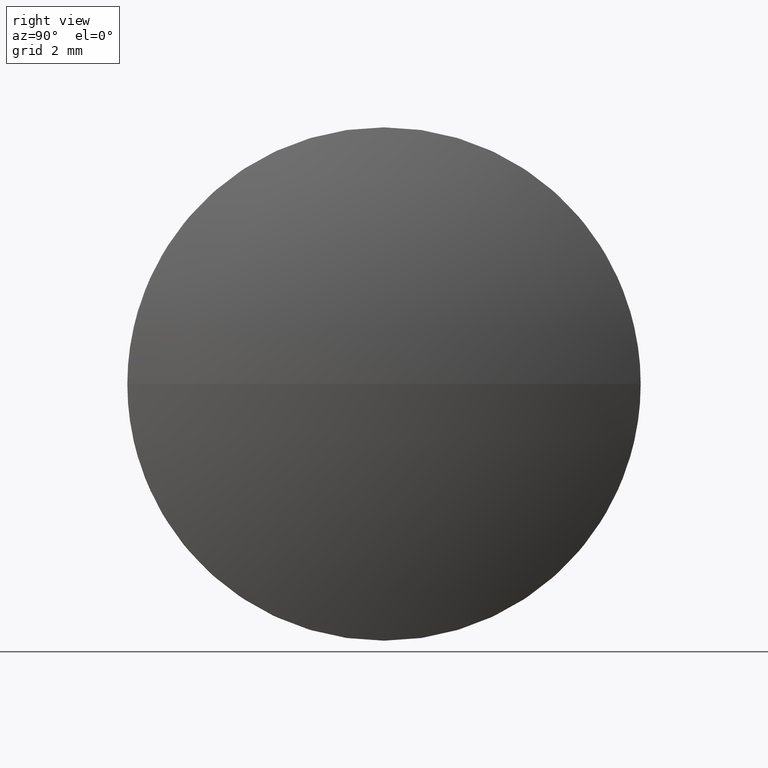
[diagram: clean part render]
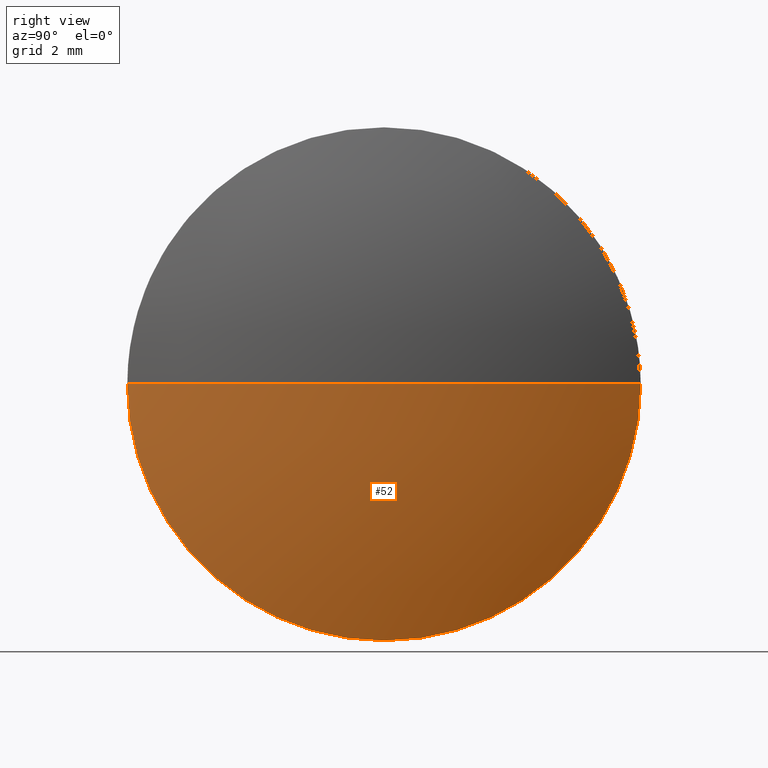
[diagram: same view with one face highlighted and labeled with its STEP entity id]
A machine part, right view. The second image highlights one B-rep face of the part: STEP entity #52.
In plain terms, the highlighted spherical surface has radius 20.7893 mm.
Its self-contained STEP definition (entity closure, byte-faithful):
#1 = AXIS2_PLACEMENT_3D ( 'NONE', #87, #11, #106 ) ;
#3 = EDGE_CURVE ( 'NONE', #139, #54, #163, .T. ) ;
#4 = ORIENTED_EDGE ( 'NONE', *, *, #83, .F. ) ;
#6 = AXIS2_PLACEMENT_3D ( 'NONE', #116, #22, #13 ) ;
#11 = DIRECTION ( 'NONE',  ( -1.000000000000000000, -0.0000000000000000000, -0.0000000000000000000 ) ) ;
#13 = DIRECTION ( 'NONE',  ( 0.0000000000000000000, 0.0000000000000000000, 1.000000000000000000 ) ) ;
#22 = DIRECTION ( 'NONE',  ( -1.000000000000000000, -0.0000000000000000000, -0.0000000000000000000 ) ) ;
#23 = CARTESIAN_POINT ( 'NONE',  ( 366.1699605554130700, 373.7277991723684600, -9.184850993605163700E-016 ) ) ;
#36 = DIRECTION ( 'NONE',  ( 0.0000000000000000000, 1.000000000000000000, 1.224646799147353000E-016 ) ) ;
#38 = DIRECTION ( 'NONE',  ( -0.0000000000000000000, 0.0000000000000000000, -1.000000000000000000 ) ) ;
#50 = SPHERICAL_SURFACE ( 'NONE', #147, 20.78928571428567200 ) ;
#51 = CIRCLE ( 'NONE', #149, 20.78928571428567600 ) ;
#52 = ADVANCED_FACE ( 'NONE', ( #161 ), #50, .T. ) ;
#54 = VERTEX_POINT ( 'NONE', #23 ) ;
#70 = DIRECTION ( 'NONE',  ( 1.000000000000000000, 0.0000000000000000000, 0.0000000000000000000 ) ) ;
#71 = CARTESIAN_POINT ( 'NONE',  ( 366.1699605554130700, 381.2277991723684600, -7.500000000000007100 ) ) ;
#78 = CIRCLE ( 'NONE', #6, 7.500000000000007100 ) ;
#80 = VERTEX_POINT ( 'NONE', #71 ) ;
#83 = EDGE_CURVE ( 'NONE', #139, #107, #51, .T. ) ;
#85 = DIRECTION ( 'NONE',  ( -0.0000000000000000000, 0.0000000000000000000, 1.000000000000000000 ) ) ;
#87 = CARTESIAN_POINT ( 'NONE',  ( 366.1699605554130700, 381.2277991723684600, 0.0000000000000000000 ) ) ;
#88 = CARTESIAN_POINT ( 'NONE',  ( 346.7806748411273900, 381.2277991723684600, 0.0000000000000000000 ) ) ;
#100 = EDGE_CURVE ( 'NONE', #107, #80, #78, .T. ) ;
#102 = CARTESIAN_POINT ( 'NONE',  ( 346.7806748411273900, 381.2277991723684600, 0.0000000000000000000 ) ) ;
#105 = CARTESIAN_POINT ( 'NONE',  ( 367.5699605554131000, 381.2277991723684600, 0.0000000000000000000 ) ) ;
#106 = DIRECTION ( 'NONE',  ( 0.0000000000000000000, 0.0000000000000000000, 1.000000000000000000 ) ) ;
#107 = VERTEX_POINT ( 'NONE', #171 ) ;
#116 = CARTESIAN_POINT ( 'NONE',  ( 366.1699605554130700, 381.2277991723684600, 0.0000000000000000000 ) ) ;
#121 = ORIENTED_EDGE ( 'NONE', *, *, #123, .F. ) ;
#123 = EDGE_CURVE ( 'NONE', #80, #54, #128, .T. ) ;
#128 = CIRCLE ( 'NONE', #1, 7.500000000000007100 ) ;
#131 = DIRECTION ( 'NONE',  ( 0.0000000000000000000, 1.000000000000000000, 0.0000000000000000000 ) ) ;
#139 = VERTEX_POINT ( 'NONE', #105 ) ;
#142 = AXIS2_PLACEMENT_3D ( 'NONE', #102, #166, #36 ) ;
#144 = CARTESIAN_POINT ( 'NONE',  ( 346.7806748411273900, 381.2277991723684600, 0.0000000000000000000 ) ) ;
#147 = AXIS2_PLACEMENT_3D ( 'NONE', #88, #38, #131 ) ;
#149 = AXIS2_PLACEMENT_3D ( 'NONE', #144, #85, #70 ) ;
#156 = EDGE_LOOP ( 'NONE', ( #4, #170, #121, #186 ) ) ;
#161 = FACE_OUTER_BOUND ( 'NONE', #156, .T. ) ;
#163 = CIRCLE ( 'NONE', #142, 20.78928571428567600 ) ;
#166 = DIRECTION ( 'NONE',  ( 0.0000000000000000000, 1.224646799147353200E-016, -1.000000000000000000 ) ) ;
#170 = ORIENTED_EDGE ( 'NONE', *, *, #3, .T. ) ;
#171 = CARTESIAN_POINT ( 'NONE',  ( 366.1699605554130700, 388.7277991723685200, 0.0000000000000000000 ) ) ;
#186 = ORIENTED_EDGE ( 'NONE', *, *, #100, .F. ) ;